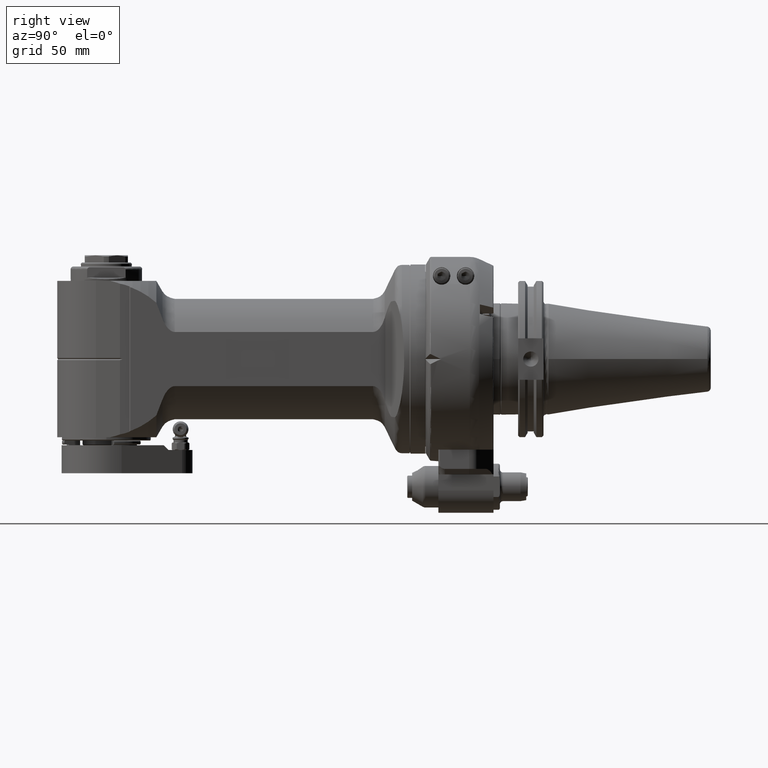
[diagram: clean part render]
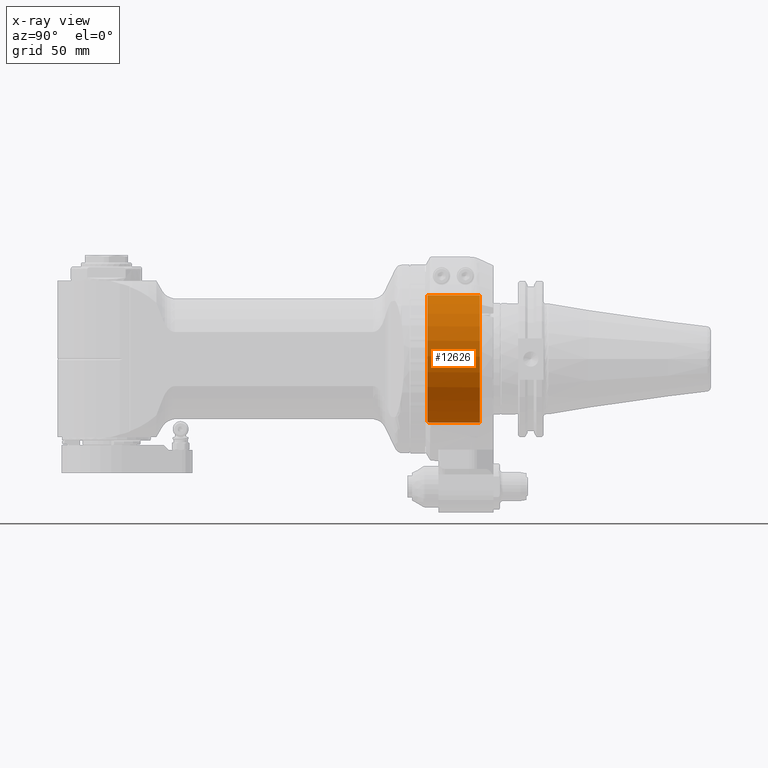
[diagram: x-ray — body ghosted, one internal face saturated and labeled with its STEP entity id]
A machine part, right view, then the same camera in x-ray: the body is ghosted and one INTERNAL B-rep face — a face not visible from any outside direction — is saturated and labeled: STEP entity #12626.
In plain terms, the highlighted cylindrical surface (partial cylindrical patch) has radius 40 mm, axis along (0, -1, 0).
Its self-contained STEP definition (entity closure, byte-faithful):
#446=CYLINDRICAL_SURFACE('',#13508,40.);
#842=CIRCLE('',#13498,40.);
#847=CIRCLE('',#13509,40.);
#848=CIRCLE('',#13510,40.);
#849=CIRCLE('',#13511,40.);
#1543=FACE_OUTER_BOUND('',#2337,.T.);
#2337=EDGE_LOOP('',(#8514,#8515,#8516,#8517,#8518,#8519,#8520,#8521));
#3451=LINE('',#19059,#4283);
#3459=LINE('',#19151,#4291);
#3472=LINE('',#19343,#4304);
#3476=LINE('',#19353,#4308);
#4283=VECTOR('',#15029,32.99999976923);
#4291=VECTOR('',#15059,32.99999976923);
#4304=VECTOR('',#15118,8.499999538462);
#4308=VECTOR('',#15128,8.499999538462);
#5138=VERTEX_POINT('',#19056);
#5139=VERTEX_POINT('',#19058);
#5153=VERTEX_POINT('',#19148);
#5154=VERTEX_POINT('',#19150);
#5173=VERTEX_POINT('',#19278);
#5183=VERTEX_POINT('',#19342);
#5185=VERTEX_POINT('',#19350);
#5186=VERTEX_POINT('',#19352);
#6436=EDGE_CURVE('',#5139,#5138,#3451,.T.);
#6457=EDGE_CURVE('',#5154,#5153,#3459,.T.);
#6482=EDGE_CURVE('',#5154,#5173,#842,.T.);
#6497=EDGE_CURVE('',#5183,#5173,#3472,.T.);
#6501=EDGE_CURVE('',#5139,#5153,#847,.T.);
#6502=EDGE_CURVE('',#5185,#5138,#848,.T.);
#6503=EDGE_CURVE('',#5185,#5186,#3476,.T.);
#6504=EDGE_CURVE('',#5183,#5186,#849,.T.);
#8514=ORIENTED_EDGE('',*,*,#6501,.F.);
#8515=ORIENTED_EDGE('',*,*,#6436,.T.);
#8516=ORIENTED_EDGE('',*,*,#6502,.F.);
#8517=ORIENTED_EDGE('',*,*,#6503,.T.);
#8518=ORIENTED_EDGE('',*,*,#6504,.F.);
#8519=ORIENTED_EDGE('',*,*,#6497,.T.);
#8520=ORIENTED_EDGE('',*,*,#6482,.F.);
#8521=ORIENTED_EDGE('',*,*,#6457,.T.);
#12626=ADVANCED_FACE('',(#1543),#446,.F.);
#13498=AXIS2_PLACEMENT_3D('',#19279,#15092,#15093);
#13508=AXIS2_PLACEMENT_3D('',#19348,#15122,#15123);
#13509=AXIS2_PLACEMENT_3D('',#19349,#15124,#15125);
#13510=AXIS2_PLACEMENT_3D('',#19351,#15126,#15127);
#13511=AXIS2_PLACEMENT_3D('',#19354,#15129,#15130);
#15029=DIRECTION('',(0.,1.,0.));
#15059=DIRECTION('',(0.,-1.,0.));
#15092=DIRECTION('center_axis',(0.,-1.,0.));
#15093=DIRECTION('ref_axis',(-0.0374999961538496,0.,0.999296627777989));
#15118=DIRECTION('',(0.,1.,0.));
#15122=DIRECTION('center_axis',(0.,-1.,0.));
#15123=DIRECTION('ref_axis',(-1.22464679914735E-16,0.,-1.));
#15124=DIRECTION('center_axis',(0.,1.,0.));
#15125=DIRECTION('ref_axis',(0.,0.,-1.));
#15126=DIRECTION('center_axis',(0.,-1.,0.));
#15127=DIRECTION('ref_axis',(0.112499999999996,0.,-0.993651724700361));
#15128=DIRECTION('',(0.,-1.,0.));
#15129=DIRECTION('center_axis',(0.,-1.,0.));
#15130=DIRECTION('ref_axis',(0.,0.,-1.));
#19056=CARTESIAN_POINT('',(1.499999846154,33.99999976923,39.97186511112));
#19058=CARTESIAN_POINT('',(1.499999846154,0.999999999999999,39.97186511112));
#19059=CARTESIAN_POINT('',(1.499999846154,0.999999999999999,39.97186511112));
#19148=CARTESIAN_POINT('',(-1.499999846154,0.999999999999999,39.97186511112));
#19150=CARTESIAN_POINT('',(-1.499999846154,33.99999976923,39.97186511112));
#19151=CARTESIAN_POINT('',(-1.499999846154,33.99999976923,39.97186511112));
#19278=CARTESIAN_POINT('',(-4.5,33.99999976923,-39.74606898801));
#19279=CARTESIAN_POINT('Origin',(0.,33.99999976923,0.));
#19342=CARTESIAN_POINT('',(-4.5,25.50000023077,-39.74606898801));
#19343=CARTESIAN_POINT('',(-4.5,25.50000023077,-39.74606898801));
#19348=CARTESIAN_POINT('Origin',(0.,21.07692284615,0.));
#19349=CARTESIAN_POINT('Origin',(0.,0.999999999999999,0.));
#19350=CARTESIAN_POINT('',(4.5,33.99999976923,-39.74606898801));
#19351=CARTESIAN_POINT('Origin',(0.,33.99999976923,0.));
#19352=CARTESIAN_POINT('',(4.5,25.50000023077,-39.74606898801));
#19353=CARTESIAN_POINT('',(4.5,33.99999976923,-39.74606898801));
#19354=CARTESIAN_POINT('Origin',(0.,25.50000023077,0.));